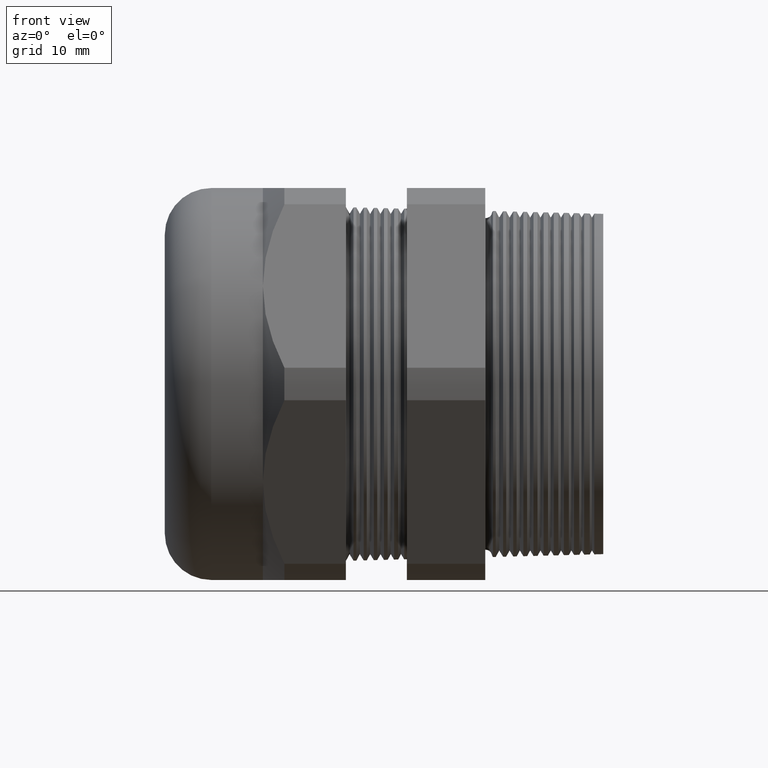
[diagram: clean part render]
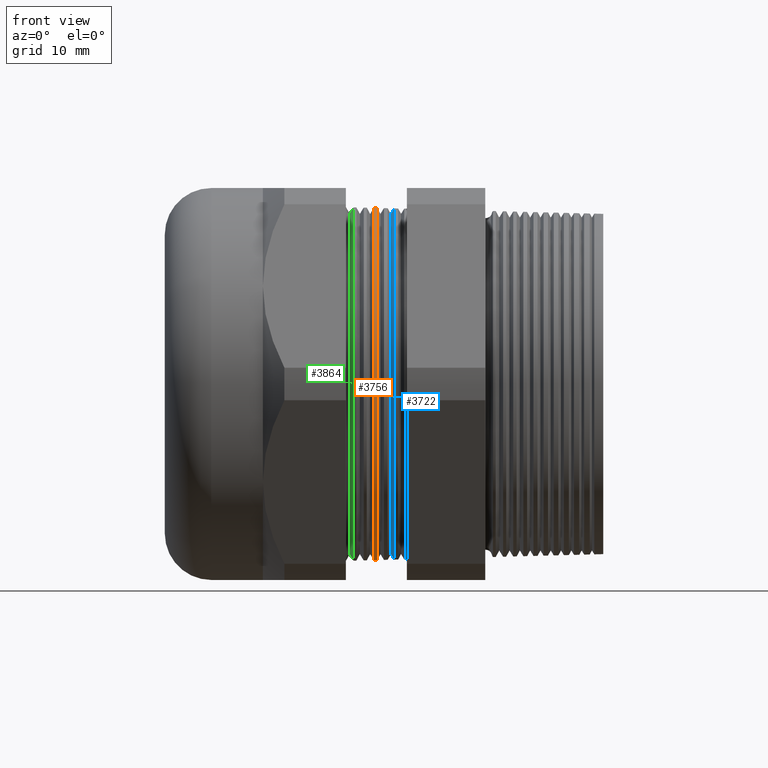
[diagram: same view with three faces highlighted in distinct colors, each labeled with its STEP entity id]
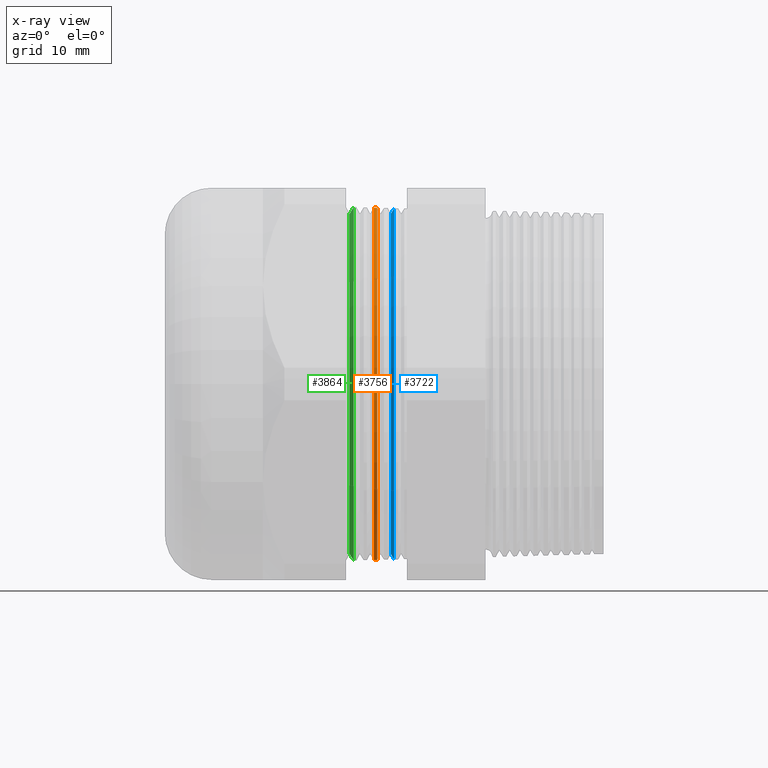
[diagram: x-ray of the same camera — body ghosted, the three highlighted faces saturated]
A machine part, front view with three faces highlighted in distinct colors.
The next image is the same camera in x-ray (body ghosted, the three faces saturated) — at least one of them is partly hidden behind the body in this view.
Their STEP definitions:

[orange] entity #3756 — the highlighted conical surface has half-angle 1.5 deg.
#1474 = CARTESIAN_POINT ( 'NONE',  ( -0.9812361778538217800, 1.298854475289913900E-016, -1.060595166046428100 ) ) ;
#1480 = CARTESIAN_POINT ( 'NONE',  ( -0.9812361778538217800, 0.0000000000000000000, 1.060595166046428100 ) ) ;
#1798 = CIRCLE ( 'NONE', #1860, 1.060059170890920200 ) ;
#1841 = DIRECTION ( 'NONE',  ( 0.0000000000000000000, 0.0000000000000000000, -1.000000000000000000 ) ) ;
#1842 = DIRECTION ( 'NONE',  ( -1.000000000000000000, 0.0000000000000000000, 0.0000000000000000000 ) ) ;
#1843 = AXIS2_PLACEMENT_3D ( 'NONE', #1848, #1842, #1841 ) ;
#1844 = CIRCLE ( 'NONE', #1843, 1.060595166046428100 ) ;
#1845 = DIRECTION ( 'NONE',  ( 0.0000000000000000000, 0.0000000000000000000, 1.000000000000000000 ) ) ;
#1846 = DIRECTION ( 'NONE',  ( -1.000000000000000000, 0.0000000000000000000, 0.0000000000000000000 ) ) ;
#1847 = AXIS2_PLACEMENT_3D ( 'NONE', #1855, #1846, #1845 ) ;
#1848 = CARTESIAN_POINT ( 'NONE',  ( -0.9812361778538217800, 0.0000000000000000000, 0.0000000000000000000 ) ) ;
#1849 = CONICAL_SURFACE ( 'NONE', #1847, 1.055389504924895400, 0.02617993877990766300 ) ;
#1850 = FACE_OUTER_BOUND ( 'NONE', #3757, .T. ) ;
#1855 = CARTESIAN_POINT ( 'NONE',  ( -0.7824399999999999100, 0.0000000000000000000, 0.0000000000000000000 ) ) ;
#1857 = DIRECTION ( 'NONE',  ( 0.0000000000000000000, 0.0000000000000000000, 1.000000000000000000 ) ) ;
#1858 = DIRECTION ( 'NONE',  ( 1.000000000000000000, 0.0000000000000000000, 0.0000000000000000000 ) ) ;
#1859 = CARTESIAN_POINT ( 'NONE',  ( -0.9607673486742850400, 0.0000000000000000000, 0.0000000000000000000 ) ) ;
#1860 = AXIS2_PLACEMENT_3D ( 'NONE', #1859, #1858, #1857 ) ;
#2206 = DIRECTION ( 'NONE',  ( -0.9996573249755573700, 0.0000000000000000000, 0.02617694830786587000 ) ) ;
#2207 = VECTOR ( 'NONE', #2206, 39.37007874015748100 ) ;
#2208 = CARTESIAN_POINT ( 'NONE',  ( -0.7824399999999999100, 0.0000000000000000000, 1.055389504924895400 ) ) ;
#2209 = LINE ( 'NONE', #2208, #2207 ) ;
#2214 = CARTESIAN_POINT ( 'NONE',  ( -0.7824399999999999100, 1.292479379059982900E-016, -1.055389504924895400 ) ) ;
#2215 = LINE ( 'NONE', #2214, #2275 ) ;
#2243 = CARTESIAN_POINT ( 'NONE',  ( -0.9607673486742850400, 0.0000000000000000000, 1.060059170890920200 ) ) ;
#2274 = DIRECTION ( 'NONE',  ( -0.9996573249755573700, 3.205751595667366900E-018, -0.02617694830786587000 ) ) ;
#2275 = VECTOR ( 'NONE', #2274, 39.37007874015748100 ) ;
#2671 = CARTESIAN_POINT ( 'NONE',  ( -0.9607673486742850400, 1.298198070538362600E-016, -1.060059170890920200 ) ) ;
#3554 = VERTEX_POINT ( 'NONE', #1480 ) ;
#3557 = VERTEX_POINT ( 'NONE', #1474 ) ;
#3748 = EDGE_CURVE ( 'NONE', #4255, #4483, #1798, .T. ) ;
#3756 = ADVANCED_FACE ( 'NONE', ( #1850 ), #1849, .T. ) ;
#3757 = EDGE_LOOP ( 'NONE', ( #3758, #3759, #3760, #3761 ) ) ;
#3758 = ORIENTED_EDGE ( 'NONE', *, *, #4269, .F. ) ;
#3759 = ORIENTED_EDGE ( 'NONE', *, *, #3748, .F. ) ;
#3760 = ORIENTED_EDGE ( 'NONE', *, *, #4048, .T. ) ;
#3761 = ORIENTED_EDGE ( 'NONE', *, *, #3762, .F. ) ;
#3762 = EDGE_CURVE ( 'NONE', #3557, #3554, #1844, .T. ) ;
#4048 = EDGE_CURVE ( 'NONE', #4255, #3554, #2209, .T. ) ;
#4255 = VERTEX_POINT ( 'NONE', #2243 ) ;
#4269 = EDGE_CURVE ( 'NONE', #4483, #3557, #2215, .T. ) ;
#4483 = VERTEX_POINT ( 'NONE', #2671 ) ;

[blue] entity #3722 — the highlighted conical surface has half-angle 58.5 deg.
#1765 = CIRCLE ( 'NONE', #1828, 1.057399393545024800 ) ;
#1766 = DIRECTION ( 'NONE',  ( 0.0000000000000000000, 0.0000000000000000000, -1.000000000000000000 ) ) ;
#1767 = DIRECTION ( 'NONE',  ( 1.000000000000000000, 0.0000000000000000000, 0.0000000000000000000 ) ) ;
#1768 = CARTESIAN_POINT ( 'NONE',  ( -0.8794109809054332400, 0.0000000000000000000, 0.0000000000000000000 ) ) ;
#1769 = AXIS2_PLACEMENT_3D ( 'NONE', #1768, #1767, #1766 ) ;
#1770 = CONICAL_SURFACE ( 'NONE', #1769, 1.024409176274893300, 1.021017612416699000 ) ;
#1775 = FACE_OUTER_BOUND ( 'NONE', #3745, .T. ) ;
#1799 = DIRECTION ( 'NONE',  ( 0.0000000000000000000, 0.0000000000000000000, -1.000000000000000000 ) ) ;
#1800 = DIRECTION ( 'NONE',  ( 1.000000000000000000, 0.0000000000000000000, 0.0000000000000000000 ) ) ;
#1801 = AXIS2_PLACEMENT_3D ( 'NONE', #1807, #1800, #1799 ) ;
#1802 = CIRCLE ( 'NONE', #1801, 1.024409176274893300 ) ;
#1807 = CARTESIAN_POINT ( 'NONE',  ( -0.8794109809054332400, 0.0000000000000000000, 0.0000000000000000000 ) ) ;
#1825 = DIRECTION ( 'NONE',  ( 0.0000000000000000000, 0.0000000000000000000, -1.000000000000000000 ) ) ;
#1826 = DIRECTION ( 'NONE',  ( -1.000000000000000000, 0.0000000000000000000, 0.0000000000000000000 ) ) ;
#1827 = CARTESIAN_POINT ( 'NONE',  ( -0.8591945497613936400, 0.0000000000000000000, 0.0000000000000000000 ) ) ;
#1828 = AXIS2_PLACEMENT_3D ( 'NONE', #1827, #1826, #1825 ) ;
#2461 = CARTESIAN_POINT ( 'NONE',  ( -0.8794109809054332400, 0.0000000000000000000, 1.024409176274893300 ) ) ;
#2507 = CARTESIAN_POINT ( 'NONE',  ( -0.8591945497613936400, 0.0000000000000000000, -1.057399393545018600 ) ) ;
#2518 = DIRECTION ( 'NONE',  ( 0.5224985647159350300, 1.044183048100722500E-016, 0.8526401643541007300 ) ) ;
#2519 = VECTOR ( 'NONE', #2518, 39.37007874015748900 ) ;
#2520 = CARTESIAN_POINT ( 'NONE',  ( -0.8794109809054332400, 1.254539418742224800E-016, 1.024409176274893300 ) ) ;
#2521 = LINE ( 'NONE', #2520, #2519 ) ;
#2522 = CARTESIAN_POINT ( 'NONE',  ( -0.8794109809054332400, 1.275360282881365300E-016, -1.024409176274893300 ) ) ;
#2605 = DIRECTION ( 'NONE',  ( 0.5224985647159350300, 0.0000000000000000000, -0.8526401643541007300 ) ) ;
#2606 = VECTOR ( 'NONE', #2605, 39.37007874015748900 ) ;
#2607 = CARTESIAN_POINT ( 'NONE',  ( -0.8794109809054332400, 0.0000000000000000000, -1.024409176274893300 ) ) ;
#2608 = LINE ( 'NONE', #2607, #2606 ) ;
#2672 = CARTESIAN_POINT ( 'NONE',  ( -0.8591945497613936400, 1.294940782725259500E-016, 1.057399393545018600 ) ) ;
#3722 = ADVANCED_FACE ( 'NONE', ( #1775 ), #1770, .T. ) ;
#3723 = ORIENTED_EDGE ( 'NONE', *, *, #4392, .F. ) ;
#3724 = ORIENTED_EDGE ( 'NONE', *, *, #3742, .T. ) ;
#3725 = ORIENTED_EDGE ( 'NONE', *, *, #4452, .T. ) ;
#3726 = ORIENTED_EDGE ( 'NONE', *, *, #3727, .T. ) ;
#3727 = EDGE_CURVE ( 'NONE', #4396, #4482, #1765, .T. ) ;
#3742 = EDGE_CURVE ( 'NONE', #4388, #4391, #1802, .T. ) ;
#3745 = EDGE_LOOP ( 'NONE', ( #3723, #3724, #3725, #3726 ) ) ;
#4388 = VERTEX_POINT ( 'NONE', #2461 ) ;
#4391 = VERTEX_POINT ( 'NONE', #2522 ) ;
#4392 = EDGE_CURVE ( 'NONE', #4388, #4482, #2521, .T. ) ;
#4396 = VERTEX_POINT ( 'NONE', #2507 ) ;
#4452 = EDGE_CURVE ( 'NONE', #4391, #4396, #2608, .T. ) ;
#4482 = VERTEX_POINT ( 'NONE', #2672 ) ;

[green] entity #3864 — the highlighted conical surface has half-angle 58.5 deg.
#1428 = CARTESIAN_POINT ( 'NONE',  ( -1.103277805946238500, 0.0000000000000000000, 1.063790938547831200 ) ) ;
#1429 = DIRECTION ( 'NONE',  ( 0.5224985647159350300, 1.044183048100722500E-016, 0.8526401643541007300 ) ) ;
#1430 = VECTOR ( 'NONE', #1429, 39.37007874015748900 ) ;
#1431 = CARTESIAN_POINT ( 'NONE',  ( -1.127410980905433300, 1.254539418742224800E-016, 1.024409176274893300 ) ) ;
#1432 = LINE ( 'NONE', #1431, #1430 ) ;
#1433 = CARTESIAN_POINT ( 'NONE',  ( -1.103277805946238500, 1.302768167854560300E-016, -1.063790938547831200 ) ) ;
#1440 = DIRECTION ( 'NONE',  ( 0.5224985647159350300, 0.0000000000000000000, -0.8526401643541007300 ) ) ;
#1441 = VECTOR ( 'NONE', #1440, 39.37007874015748900 ) ;
#1442 = CARTESIAN_POINT ( 'NONE',  ( -1.127410980905433300, 0.0000000000000000000, -1.024409176274893300 ) ) ;
#1443 = LINE ( 'NONE', #1442, #1441 ) ;
#1569 = CARTESIAN_POINT ( 'NONE',  ( -1.127410980905433300, 1.278653793298392300E-016, 1.024409176274893300 ) ) ;
#1570 = CARTESIAN_POINT ( 'NONE',  ( -1.127410980905433300, 0.0000000000000000000, -1.024409176274893300 ) ) ;
#1972 = DIRECTION ( 'NONE',  ( 0.0000000000000000000, 0.0000000000000000000, -1.000000000000000000 ) ) ;
#1973 = DIRECTION ( 'NONE',  ( 1.000000000000000000, 0.0000000000000000000, 0.0000000000000000000 ) ) ;
#1974 = CARTESIAN_POINT ( 'NONE',  ( -1.127410980905433300, 0.0000000000000000000, 0.0000000000000000000 ) ) ;
#1975 = AXIS2_PLACEMENT_3D ( 'NONE', #1974, #1973, #1972 ) ;
#1976 = DIRECTION ( 'NONE',  ( 0.0000000000000000000, 0.0000000000000000000, -1.000000000000000000 ) ) ;
#1977 = DIRECTION ( 'NONE',  ( 1.000000000000000000, 0.0000000000000000000, 0.0000000000000000000 ) ) ;
#1978 = CARTESIAN_POINT ( 'NONE',  ( -1.127410980905433300, 0.0000000000000000000, 0.0000000000000000000 ) ) ;
#1979 = AXIS2_PLACEMENT_3D ( 'NONE', #1978, #1977, #1976 ) ;
#1980 = CIRCLE ( 'NONE', #1975, 1.024409176274893300 ) ;
#1981 = CONICAL_SURFACE ( 'NONE', #1979, 1.024409176274893300, 1.021017612416699000 ) ;
#1982 = FACE_OUTER_BOUND ( 'NONE', #3865, .T. ) ;
#1983 = DIRECTION ( 'NONE',  ( 0.0000000000000000000, 0.0000000000000000000, -1.000000000000000000 ) ) ;
#1984 = DIRECTION ( 'NONE',  ( 1.000000000000000000, 0.0000000000000000000, 0.0000000000000000000 ) ) ;
#1985 = CARTESIAN_POINT ( 'NONE',  ( -1.103277805946238500, 0.0000000000000000000, 0.0000000000000000000 ) ) ;
#1986 = AXIS2_PLACEMENT_3D ( 'NONE', #1985, #1984, #1983 ) ;
#1987 = CIRCLE ( 'NONE', #1986, 1.063790938547831200 ) ;
#3539 = EDGE_CURVE ( 'NONE', #3604, #3543, #1443, .T. ) ;
#3543 = VERTEX_POINT ( 'NONE', #1433 ) ;
#3546 = EDGE_CURVE ( 'NONE', #3605, #3547, #1432, .T. ) ;
#3547 = VERTEX_POINT ( 'NONE', #1428 ) ;
#3604 = VERTEX_POINT ( 'NONE', #1570 ) ;
#3605 = VERTEX_POINT ( 'NONE', #1569 ) ;
#3791 = ORIENTED_EDGE ( 'NONE', *, *, #3539, .T. ) ;
#3792 = ORIENTED_EDGE ( 'NONE', *, *, #3863, .F. ) ;
#3863 = EDGE_CURVE ( 'NONE', #3547, #3543, #1987, .T. ) ;
#3864 = ADVANCED_FACE ( 'NONE', ( #1982 ), #1981, .T. ) ;
#3865 = EDGE_LOOP ( 'NONE', ( #3866, #3867, #3791, #3792 ) ) ;
#3866 = ORIENTED_EDGE ( 'NONE', *, *, #3546, .F. ) ;
#3867 = ORIENTED_EDGE ( 'NONE', *, *, #3868, .T. ) ;
#3868 = EDGE_CURVE ( 'NONE', #3605, #3604, #1980, .T. ) ;